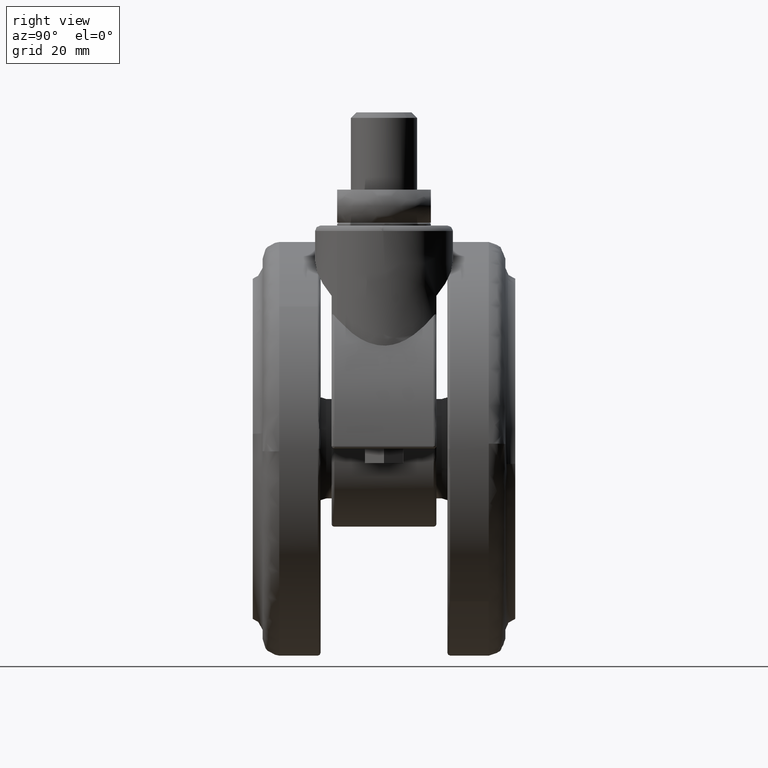
[diagram: clean part render]
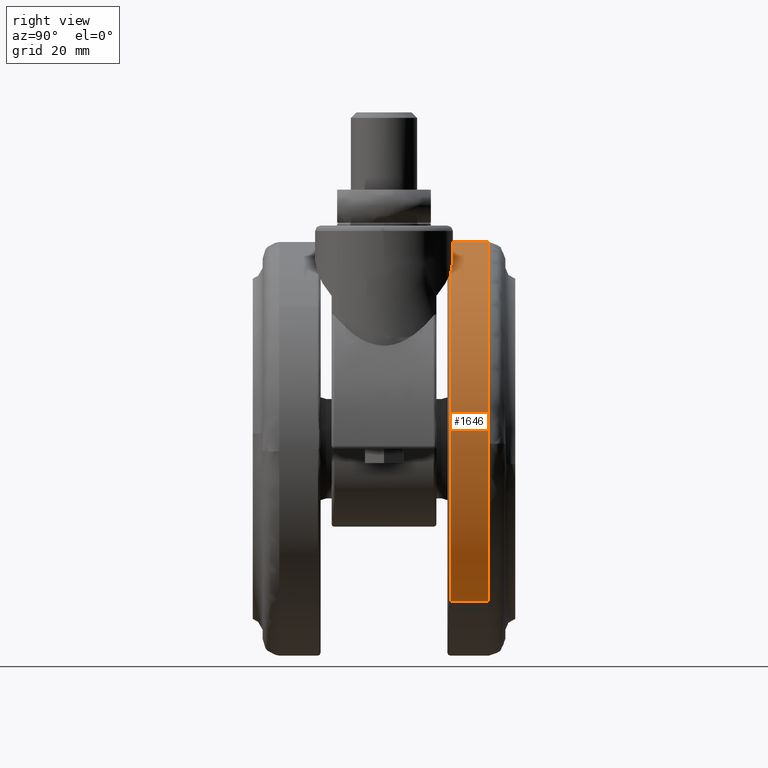
[diagram: same view with one face highlighted and labeled with its STEP entity id]
A machine part, right view. The second image highlights one B-rep face of the part: STEP entity #1646.
In plain terms, the highlighted face is a freeform B-spline surface patch.
Its self-contained STEP definition (entity closure, byte-faithful):
#1139=CARTESIAN_POINT('',(5.334632756866524,19.000000026145599,-68.147900156696906));
#1140=VERTEX_POINT('',#1139);
#1141=CARTESIAN_POINT('',(17.488157098122979,19.000000056743058,-39.557621420864251));
#1142=VERTEX_POINT('',#1141);
#1143=CARTESIAN_POINT('',(5.334632756866524,19.000000026145599,-68.147900156696906));
#1144=CARTESIAN_POINT('',(7.118341565954817,19.000000028697979,-66.513843300913038));
#1145=CARTESIAN_POINT('',(9.919399125310491,19.000000033122252,-63.397384863550769));
#1146=CARTESIAN_POINT('',(12.921113019020749,19.000000038916049,-58.666871190964187));
#1147=CARTESIAN_POINT('',(14.730776301657860,19.000000043169621,-54.809265656108387));
#1148=CARTESIAN_POINT('',(15.950886762366411,19.000000046691671,-51.344107084882388));
#1149=CARTESIAN_POINT('',(16.875028809410960,19.000000050128921,-47.701755193868358));
#1150=CARTESIAN_POINT('',(17.441471834658660,19.000000053551432,-43.730832467051037));
#1151=CARTESIAN_POINT('',(17.521717031582600,19.000000055758321,-40.891828010444122));
#1152=CARTESIAN_POINT('',(17.488157098122979,19.000000056743058,-39.557621420864251));
#1153=B_SPLINE_CURVE_WITH_KNOTS('',3,(#1143,#1144,#1145,#1146,#1147,#1148,#1149,#1150,#1151,#1152),.UNSPECIFIED.,.F.,.U.,(4,1,1,1,1,1,1,4),(7.705509E-009,7.257069829861166,12.512193901831310,16.766322769183368,20.019500283056050,23.522921629800980,28.027321573726940,32.031214567722841),.UNSPECIFIED.);
#1154=EDGE_CURVE('',#1140,#1142,#1153,.T.);
#1251=CARTESIAN_POINT('',(-20.000000000000501,19.0,-3.000000000000003));
#1252=VERTEX_POINT('',#1251);
#1253=CARTESIAN_POINT('',(17.488157098122979,19.000000056743058,-39.557621420864251));
#1254=CARTESIAN_POINT('',(17.429650000175659,19.000000054928119,-37.218705382313779));
#1255=CARTESIAN_POINT('',(17.025190477920010,19.000000052051782,-33.831683345892273));
#1256=CARTESIAN_POINT('',(15.788664805426160,19.000000047497320,-29.079865991716670));
#1257=CARTESIAN_POINT('',(14.387496576895320,19.000000043569891,-25.325495459492942));
#1258=CARTESIAN_POINT('',(12.624426879434020,19.000000039607901,-21.896827064780378));
#1259=CARTESIAN_POINT('',(10.550740421789650,19.000000035543440,-18.651107155306018));
#1260=CARTESIAN_POINT('',(7.937654866483370,19.000000030995590,-15.319507075807531));
#1261=CARTESIAN_POINT('',(4.578810219990305,19.000000025911440,-12.044043482973191));
#1262=CARTESIAN_POINT('',(1.199083071058568,19.000000021361590,-9.495932418485563));
#1263=CARTESIAN_POINT('',(-2.215242963059771,19.000000017130880,-7.405209195497832));
#1264=CARTESIAN_POINT('',(-6.039956851160341,19.000000012787812,-5.586895946753733));
#1265=CARTESIAN_POINT('',(-10.638753771932700,19.000000008078569,-4.078291106981346));
#1266=CARTESIAN_POINT('',(-15.320755361563830,19.000000003775259,-3.191610067069564));
#1267=CARTESIAN_POINT('',(-18.490563951374341,19.000000001171049,-2.999966534454065));
#1268=CARTESIAN_POINT('',(-20.000000000000501,19.0,-3.000000000000003));
#1269=B_SPLINE_CURVE_WITH_KNOTS('',3,(#1253,#1254,#1255,#1256,#1257,#1258,#1259,#1260,#1261,#1262,#1263,#1264,#1265,#1266,#1267,#1268),.UNSPECIFIED.,.F.,.U.,(4,1,1,1,1,1,1,1,1,1,1,1,1,4),(0.000000036086924,7.018872785151899,10.188705216983010,14.717035209277300,19.018950782528091,21.735947318450410,26.264278321491709,31.698201360940171,35.773690811951539,38.943534202897652,43.698271065153477,48.453018698941442,53.434159339044847,57.962472498556622),.UNSPECIFIED.);
#1270=EDGE_CURVE('',#1142,#1252,#1269,.T.);
#1276=CARTESIAN_POINT('',(-45.334632756867478,19.000000026145599,-12.852099843303090));
#1277=VERTEX_POINT('',#1276);
#1291=CARTESIAN_POINT('',(-20.000000000000501,19.0,-3.000000000000003));
#1292=CARTESIAN_POINT('',(-22.245593617485820,19.000000001656669,-2.999791094977538));
#1293=CARTESIAN_POINT('',(-25.794971545792759,19.000000004517371,-3.319802520802203));
#1294=CARTESIAN_POINT('',(-30.383728939235159,19.000000008722679,-4.403058898360816));
#1295=CARTESIAN_POINT('',(-34.019302511194603,19.000000012347890,-5.649598523975715));
#1296=CARTESIAN_POINT('',(-37.313846837307644,19.000000015927121,-7.167462284802703));
#1297=CARTESIAN_POINT('',(-41.254540295522460,19.000000020582220,-9.477624731051289));
#1298=CARTESIAN_POINT('',(-43.785931909809882,19.000000023929118,-11.432759478253169));
#1299=CARTESIAN_POINT('',(-45.334632756867478,19.000000026145599,-12.852099843303090));
#1300=B_SPLINE_CURVE_WITH_KNOTS('',3,(#1291,#1292,#1293,#1294,#1295,#1296,#1297,#1298,#1299),.UNSPECIFIED.,.F.,.U.,(4,1,1,1,1,1,4),(0.000000010817455,6.736741011893290,10.648399159540441,14.125411978697480,18.254395531834771,21.514111428666411,27.816223836564330),.UNSPECIFIED.);
#1301=EDGE_CURVE('',#1252,#1277,#1300,.T.);
#1563=CARTESIAN_POINT('',(-45.334632785587722,11.824999996411490,-12.852099869620361));
#1564=CARTESIAN_POINT('',(-17.686732655208072,11.824999996411522,12.482532915966889));
#1565=CARTESIAN_POINT('',(7.647900130379171,11.824999996411551,-15.165367214412750));
#1566=CARTESIAN_POINT('',(32.982532915966416,11.824999996411572,-42.813267344792379));
#1567=CARTESIAN_POINT('',(5.334632785586788,11.824999996411540,-68.147900130379639));
#1568=CARTESIAN_POINT('',(-45.334632785587729,19.179375058251360,-12.852099869620361));
#1569=CARTESIAN_POINT('',(-17.686732655208100,19.179375058251399,12.482532915966889));
#1570=CARTESIAN_POINT('',(7.647900130379163,19.179375058251420,-15.165367214412750));
#1571=CARTESIAN_POINT('',(32.982532915966416,19.179375058251441,-42.813267344792379));
#1572=CARTESIAN_POINT('',(5.334632785586781,19.179375058251409,-68.147900130379639));
#1580=(BOUNDED_SURFACE()B_SPLINE_SURFACE(2,1,((#1563,#1568),(#1564,#1569),(#1565,#1570),(#1566,#1571),(#1567,#1572)),.UNSPECIFIED.,.F.,.F.,.U.)B_SPLINE_SURFACE_WITH_KNOTS((3,2,3),(2,2),(0.0,62.132034355964237,124.264068711928500),(0.0,7.354375061839871),.UNSPECIFIED.)GEOMETRIC_REPRESENTATION_ITEM()RATIONAL_B_SPLINE_SURFACE(((1.0,1.0),(0.707106781186548,0.707106781186548),(1.0,1.0),(0.707106781186548,0.707106781186548),(1.0,1.0)))REPRESENTATION_ITEM('')SURFACE());
#1581=CARTESIAN_POINT('',(-20.000000000000451,12.0,-3.000000000000003));
#1582=VERTEX_POINT('',#1581);
#1583=CARTESIAN_POINT('',(-45.334632757467077,11.999999999006819,-12.852099843852550));
#1584=VERTEX_POINT('',#1583);
#1585=CARTESIAN_POINT('',(-20.000000000000451,12.0,-3.000000000000003));
#1586=CARTESIAN_POINT('',(-21.666074445786730,11.999999999952960,-2.999938960968263));
#1587=CARTESIAN_POINT('',(-24.491136931650338,11.999999999867940,-3.188596007271955));
#1588=CARTESIAN_POINT('',(-28.986130086996230,11.999999999717989,-4.004879366050679));
#1589=CARTESIAN_POINT('',(-33.709781954192152,11.999999999544039,-5.442947196990068));
#1590=CARTESIAN_POINT('',(-39.544722653893167,11.999999999300581,-8.234292512502888));
#1591=CARTESIAN_POINT('',(-43.358850882426282,11.999999999113760,-11.041031744149420));
#1592=CARTESIAN_POINT('',(-45.334632757467077,11.999999999006819,-12.852099843852550));
#1593=B_SPLINE_CURVE_WITH_KNOTS('',3,(#1585,#1586,#1587,#1588,#1589,#1590,#1591,#1592),.UNSPECIFIED.,.F.,.U.,(4,1,1,1,1,4),(0.000000010810396,4.998221903876495,8.475256980030039,13.690811869080500,19.775593007443831,27.816223837377731),.UNSPECIFIED.);
#1594=EDGE_CURVE('',#1582,#1584,#1593,.T.);
#1595=ORIENTED_EDGE('',*,*,#1594,.F.);
#1596=CARTESIAN_POINT('',(17.499999999999542,11.999999997883060,-40.500000000000000));
#1597=VERTEX_POINT('',#1596);
#1598=CARTESIAN_POINT('',(17.499999999999542,11.999999997883060,-40.500000000000000));
#1599=CARTESIAN_POINT('',(17.500018642159979,11.999999997919870,-39.196126791270743));
#1600=CARTESIAN_POINT('',(17.355861689685639,11.999999998001851,-36.434971810106759));
#1601=CARTESIAN_POINT('',(16.671825742650249,11.999999998138900,-32.265085768909259));
#1602=CARTESIAN_POINT('',(15.401510913383360,11.999999998299820,-27.833787161206089));
#1603=CARTESIAN_POINT('',(13.372294069341280,11.999999998490660,-23.099791444069751));
#1604=CARTESIAN_POINT('',(10.829384499461710,11.999999998679019,-18.972903497999479));
#1605=CARTESIAN_POINT('',(7.602573361329978,11.999999998883149,-14.966467469749750));
#1606=CARTESIAN_POINT('',(4.334073133183359,11.999999999064229,-11.816073016205090));
#1607=CARTESIAN_POINT('',(0.863171758229979,11.999999999234150,-9.274907704891337));
#1608=CARTESIAN_POINT('',(-2.494228736616946,11.999999999385119,-7.262513207395592));
#1609=CARTESIAN_POINT('',(-5.973203725449515,11.999999999529910,-5.630121119068639));
#1610=CARTESIAN_POINT('',(-10.490090272499790,11.999999999699870,-4.122527831177447));
#1611=CARTESIAN_POINT('',(-15.091264289102989,11.999999999855600,-3.207270476760795));
#1612=CARTESIAN_POINT('',(-18.466032183894558,11.999999999956710,-2.999976772525549));
#1613=CARTESIAN_POINT('',(-20.000000000000451,12.0,-3.000000000000003));
#1614=B_SPLINE_CURVE_WITH_KNOTS('',3,(#1598,#1599,#1600,#1601,#1602,#1603,#1604,#1605,#1606,#1607,#1608,#1609,#1610,#1611,#1612,#1613),.UNSPECIFIED.,.F.,.U.,(4,1,1,1,1,1,1,1,1,1,1,1,1,4),(0.000000032431586,3.911624278206737,8.283490355260597,12.655356303365391,17.717515329798449,23.700070292358660,27.151540237516489,33.134008825198947,37.275787034744383,40.036961560866871,44.869011091690808,48.780670629627060,54.303036654404792,58.904954659439603),.UNSPECIFIED.);
#1615=EDGE_CURVE('',#1597,#1582,#1614,.T.);
#1616=ORIENTED_EDGE('',*,*,#1615,.F.);
#1617=CARTESIAN_POINT('',(5.334632757466166,11.999999999006830,-68.147900156147458));
#1618=VERTEX_POINT('',#1617);
#1619=CARTESIAN_POINT('',(5.334632757466166,11.999999999006830,-68.147900156147458));
#1620=CARTESIAN_POINT('',(6.826987015145251,11.999999998926089,-66.780607888320603));
#1621=CARTESIAN_POINT('',(9.589423009852267,11.999999998764171,-63.803519489007833));
#1622=CARTESIAN_POINT('',(12.599837003721509,11.999999998551100,-59.269883606134727));
#1623=CARTESIAN_POINT('',(14.786987968190971,11.999999998361680,-54.743435595444261));
#1624=CARTESIAN_POINT('',(16.181642235025951,11.999999998207571,-50.676013877018733));
#1625=CARTESIAN_POINT('',(17.230552358619668,11.999999998041529,-45.843320437289073));
#1626=CARTESIAN_POINT('',(17.500164403330050,11.999999997940099,-42.524013409364713));
#1627=CARTESIAN_POINT('',(17.499999999999542,11.999999997883060,-40.500000000000000));
#1628=B_SPLINE_CURVE_WITH_KNOTS('',3,(#1619,#1620,#1621,#1622,#1623,#1624,#1625,#1626,#1627),.UNSPECIFIED.,.F.,.U.,(4,1,1,1,1,1,4),(9.386870E-009,6.072013365680540,12.144050337564510,16.272988053516510,21.130615013347182,25.016718321322632,31.088731677618540),.UNSPECIFIED.);
#1629=EDGE_CURVE('',#1618,#1597,#1628,.T.);
#1630=ORIENTED_EDGE('',*,*,#1629,.F.);
#1631=CARTESIAN_POINT('',(5.334632757466166,11.999999999006830,-68.147900156147458));
#1632=CARTESIAN_POINT('',(5.334632756866524,19.000000026145599,-68.147900156696906));
#1633=QUASI_UNIFORM_CURVE('',1,(#1631,#1632),.UNSPECIFIED.,.F.,.U.);
#1634=EDGE_CURVE('',#1618,#1140,#1633,.T.);
#1635=ORIENTED_EDGE('',*,*,#1634,.T.);
#1636=ORIENTED_EDGE('',*,*,#1154,.T.);
#1637=ORIENTED_EDGE('',*,*,#1270,.T.);
#1638=ORIENTED_EDGE('',*,*,#1301,.T.);
#1639=CARTESIAN_POINT('',(-45.334632757467077,11.999999999006819,-12.852099843852550));
#1640=CARTESIAN_POINT('',(-45.334632756867478,19.000000026145599,-12.852099843303090));
#1641=QUASI_UNIFORM_CURVE('',1,(#1639,#1640),.UNSPECIFIED.,.F.,.U.);
#1642=EDGE_CURVE('',#1584,#1277,#1641,.T.);
#1643=ORIENTED_EDGE('',*,*,#1642,.F.);
#1644=EDGE_LOOP('',(#1595,#1616,#1630,#1635,#1636,#1637,#1638,#1643));
#1645=FACE_OUTER_BOUND('',#1644,.T.);
#1646=ADVANCED_FACE('',(#1645),#1580,.T.);